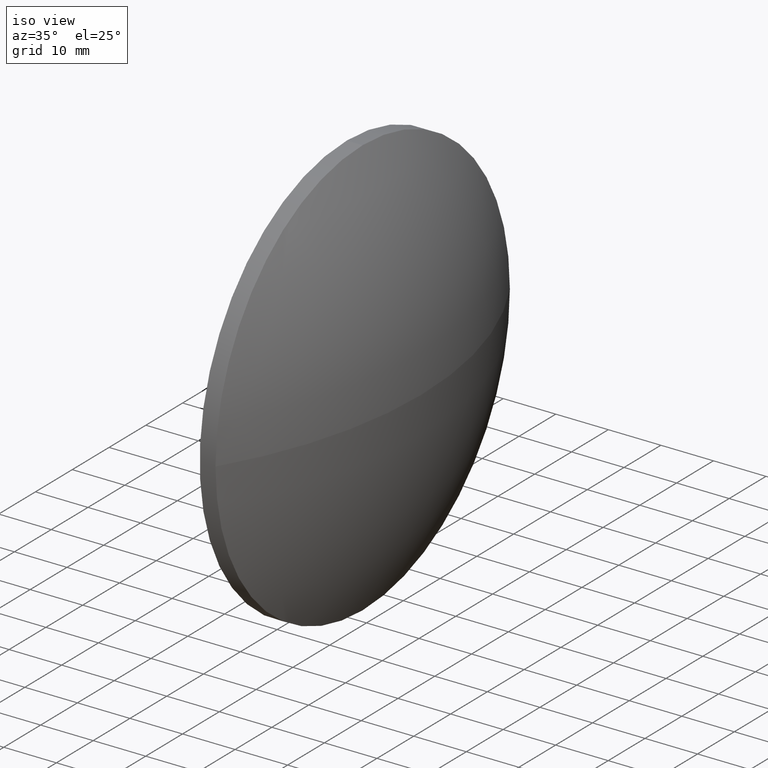
[diagram: clean part render]
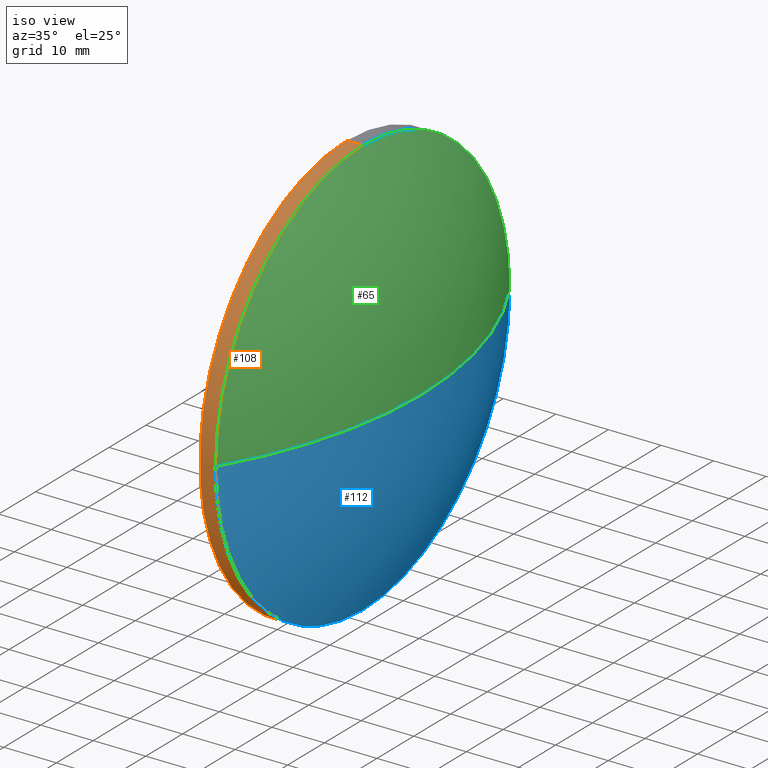
[diagram: same view with three faces highlighted in distinct colors, each labeled with its STEP entity id]
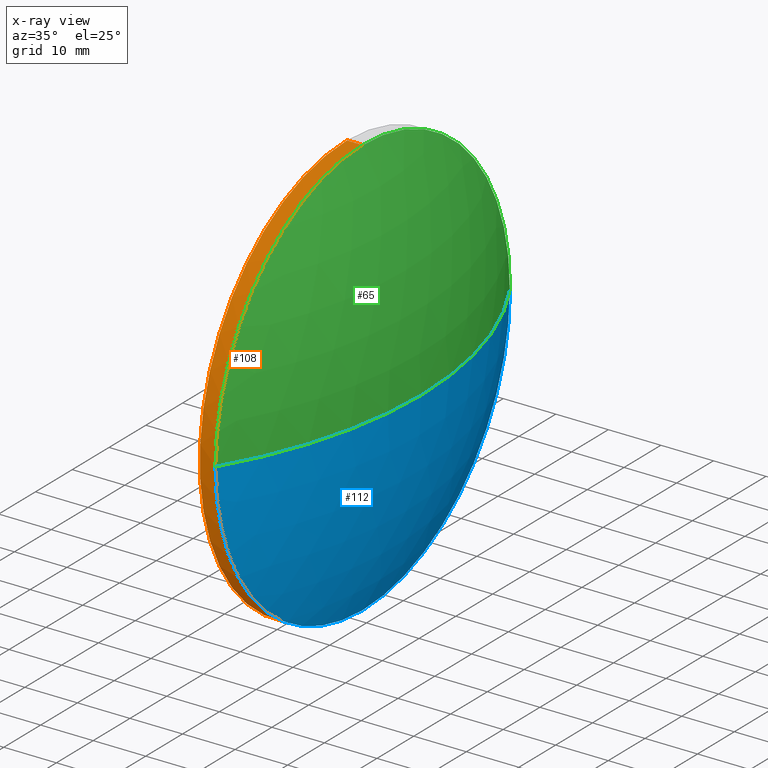
[diagram: x-ray of the same camera — body ghosted, the three highlighted faces saturated]
A machine part, iso view with three faces highlighted in distinct colors.
The next image is the same camera in x-ray (body ghosted, the three faces saturated) — at least one of them is partly hidden behind the body in this view.
Their STEP definitions:

[orange] entity #108 — the highlighted cylindrical surface (partial cylindrical patch) has radius 40 mm, axis along (-1, -0, -0).
#2 = DIRECTION ( 'NONE',  ( 0.0000000000000000000, 0.0000000000000000000, 1.000000000000000000 ) ) ;
#5 = CARTESIAN_POINT ( 'NONE',  ( 228.9490942240209100, 130.4671098528244200, 0.0000000000000000000 ) ) ;
#18 = ORIENTED_EDGE ( 'NONE', *, *, #169, .T. ) ;
#19 = LINE ( 'NONE', #180, #172 ) ;
#23 = CYLINDRICAL_SURFACE ( 'NONE', #39, 40.00000000000000700 ) ;
#25 = CARTESIAN_POINT ( 'NONE',  ( 228.9490942240209100, 130.4671098528244200, -40.00000000000000700 ) ) ;
#27 = CARTESIAN_POINT ( 'NONE',  ( 228.9490942240209100, 90.46710985282442200, -4.898587196589411400E-015 ) ) ;
#37 = AXIS2_PLACEMENT_3D ( 'NONE', #155, #162, #45 ) ;
#39 = AXIS2_PLACEMENT_3D ( 'NONE', #78, #175, #94 ) ;
#41 = EDGE_CURVE ( 'NONE', #84, #105, #168, .T. ) ;
#45 = DIRECTION ( 'NONE',  ( 0.0000000000000000000, 0.0000000000000000000, 1.000000000000000000 ) ) ;
#51 = CIRCLE ( 'NONE', #37, 40.00000000000000700 ) ;
#52 = CARTESIAN_POINT ( 'NONE',  ( 225.9490942240209100, 130.4671098528244200, -40.00000000000000700 ) ) ;
#53 = AXIS2_PLACEMENT_3D ( 'NONE', #176, #76, #2 ) ;
#60 = FACE_OUTER_BOUND ( 'NONE', #91, .T. ) ;
#61 = ORIENTED_EDGE ( 'NONE', *, *, #41, .F. ) ;
#63 = DIRECTION ( 'NONE',  ( -1.000000000000000000, -0.0000000000000000000, -0.0000000000000000000 ) ) ;
#64 = DIRECTION ( 'NONE',  ( -1.000000000000000000, -0.0000000000000000000, -0.0000000000000000000 ) ) ;
#72 = VERTEX_POINT ( 'NONE', #27 ) ;
#76 = DIRECTION ( 'NONE',  ( -1.000000000000000000, -0.0000000000000000000, -0.0000000000000000000 ) ) ;
#78 = CARTESIAN_POINT ( 'NONE',  ( 217.9945825323866300, 130.4671098528244200, 0.0000000000000000000 ) ) ;
#82 = DIRECTION ( 'NONE',  ( -1.000000000000000000, -0.0000000000000000000, -0.0000000000000000000 ) ) ;
#84 = VERTEX_POINT ( 'NONE', #52 ) ;
#90 = VERTEX_POINT ( 'NONE', #25 ) ;
#91 = EDGE_LOOP ( 'NONE', ( #132, #18, #177, #129, #61 ) ) ;
#94 = DIRECTION ( 'NONE',  ( 0.0000000000000000000, 0.0000000000000000000, 1.000000000000000000 ) ) ;
#97 = CARTESIAN_POINT ( 'NONE',  ( 228.9490942240209100, 130.4671098528244200, 40.00000000000000700 ) ) ;
#102 = CIRCLE ( 'NONE', #126, 40.00000000000000700 ) ;
#104 = LINE ( 'NONE', #182, #113 ) ;
#105 = VERTEX_POINT ( 'NONE', #106 ) ;
#106 = CARTESIAN_POINT ( 'NONE',  ( 225.9490942240209100, 130.4671098528244200, 40.00000000000000700 ) ) ;
#108 = ADVANCED_FACE ( 'NONE', ( #60 ), #23, .T. ) ;
#113 = VECTOR ( 'NONE', #63, 1000.000000000000000 ) ;
#125 = VERTEX_POINT ( 'NONE', #97 ) ;
#126 = AXIS2_PLACEMENT_3D ( 'NONE', #5, #82, #167 ) ;
#128 = EDGE_CURVE ( 'NONE', #125, #105, #104, .T. ) ;
#129 = ORIENTED_EDGE ( 'NONE', *, *, #128, .T. ) ;
#131 = EDGE_CURVE ( 'NONE', #72, #125, #51, .T. ) ;
#132 = ORIENTED_EDGE ( 'NONE', *, *, #158, .F. ) ;
#155 = CARTESIAN_POINT ( 'NONE',  ( 228.9490942240209100, 130.4671098528244200, 0.0000000000000000000 ) ) ;
#158 = EDGE_CURVE ( 'NONE', #90, #84, #19, .T. ) ;
#162 = DIRECTION ( 'NONE',  ( -1.000000000000000000, -0.0000000000000000000, -0.0000000000000000000 ) ) ;
#167 = DIRECTION ( 'NONE',  ( 0.0000000000000000000, 0.0000000000000000000, 1.000000000000000000 ) ) ;
#168 = CIRCLE ( 'NONE', #53, 40.00000000000000700 ) ;
#169 = EDGE_CURVE ( 'NONE', #90, #72, #102, .T. ) ;
#172 = VECTOR ( 'NONE', #64, 1000.000000000000000 ) ;
#175 = DIRECTION ( 'NONE',  ( -1.000000000000000000, -0.0000000000000000000, -0.0000000000000000000 ) ) ;
#176 = CARTESIAN_POINT ( 'NONE',  ( 225.9490942240209100, 130.4671098528244200, 0.0000000000000000000 ) ) ;
#177 = ORIENTED_EDGE ( 'NONE', *, *, #131, .T. ) ;
#180 = CARTESIAN_POINT ( 'NONE',  ( 217.9945825323866300, 130.4671098528244200, -40.00000000000000700 ) ) ;
#182 = CARTESIAN_POINT ( 'NONE',  ( 217.9945825323866300, 130.4671098528244200, 40.00000000000000700 ) ) ;

[blue] entity #112 — the highlighted spherical surface has radius 77.5024 mm.
#5 = CARTESIAN_POINT ( 'NONE',  ( 228.9490942240209100, 130.4671098528244200, 0.0000000000000000000 ) ) ;
#10 = ORIENTED_EDGE ( 'NONE', *, *, #186, .F. ) ;
#13 = AXIS2_PLACEMENT_3D ( 'NONE', #48, #47, #123 ) ;
#14 = DIRECTION ( 'NONE',  ( 0.0000000000000000000, 1.224646799147353200E-016, -1.000000000000000000 ) ) ;
#25 = CARTESIAN_POINT ( 'NONE',  ( 228.9490942240209100, 130.4671098528244200, -40.00000000000000700 ) ) ;
#26 = AXIS2_PLACEMENT_3D ( 'NONE', #138, #83, #124 ) ;
#27 = CARTESIAN_POINT ( 'NONE',  ( 228.9490942240209100, 90.46710985282442200, -4.898587196589411400E-015 ) ) ;
#44 = DIRECTION ( 'NONE',  ( 0.0000000000000000000, 0.0000000000000000000, 1.000000000000000000 ) ) ;
#47 = DIRECTION ( 'NONE',  ( -0.0000000000000000000, 0.0000000000000000000, 1.000000000000000000 ) ) ;
#48 = CARTESIAN_POINT ( 'NONE',  ( 162.5666481808554500, 130.4671098528244200, 0.0000000000000000000 ) ) ;
#50 = ORIENTED_EDGE ( 'NONE', *, *, #140, .F. ) ;
#54 = ORIENTED_EDGE ( 'NONE', *, *, #169, .F. ) ;
#58 = EDGE_CURVE ( 'NONE', #174, #72, #71, .T. ) ;
#71 = CIRCLE ( 'NONE', #86, 77.50244604316544900 ) ;
#72 = VERTEX_POINT ( 'NONE', #27 ) ;
#73 = CIRCLE ( 'NONE', #13, 77.50244604316544900 ) ;
#77 = CARTESIAN_POINT ( 'NONE',  ( 162.5666481808554500, 130.4671098528244200, 0.0000000000000000000 ) ) ;
#82 = DIRECTION ( 'NONE',  ( -1.000000000000000000, -0.0000000000000000000, -0.0000000000000000000 ) ) ;
#83 = DIRECTION ( 'NONE',  ( -0.0000000000000000000, 0.0000000000000000000, -1.000000000000000000 ) ) ;
#85 = ORIENTED_EDGE ( 'NONE', *, *, #58, .T. ) ;
#86 = AXIS2_PLACEMENT_3D ( 'NONE', #77, #14, #145 ) ;
#90 = VERTEX_POINT ( 'NONE', #25 ) ;
#98 = DIRECTION ( 'NONE',  ( -1.000000000000000000, -0.0000000000000000000, -0.0000000000000000000 ) ) ;
#99 = CARTESIAN_POINT ( 'NONE',  ( 240.0690942240208900, 130.4671098528244200, 0.0000000000000000000 ) ) ;
#102 = CIRCLE ( 'NONE', #126, 40.00000000000000700 ) ;
#111 = CARTESIAN_POINT ( 'NONE',  ( 228.9490942240209100, 130.4671098528244200, 0.0000000000000000000 ) ) ;
#112 = ADVANCED_FACE ( 'NONE', ( #139 ), #179, .T. ) ;
#120 = EDGE_LOOP ( 'NONE', ( #50, #85, #54, #10 ) ) ;
#123 = DIRECTION ( 'NONE',  ( 1.000000000000000000, 0.0000000000000000000, 0.0000000000000000000 ) ) ;
#124 = DIRECTION ( 'NONE',  ( 0.0000000000000000000, 1.000000000000000000, 0.0000000000000000000 ) ) ;
#126 = AXIS2_PLACEMENT_3D ( 'NONE', #5, #82, #167 ) ;
#134 = CIRCLE ( 'NONE', #151, 40.00000000000000700 ) ;
#138 = CARTESIAN_POINT ( 'NONE',  ( 162.5666481808554500, 130.4671098528244200, 0.0000000000000000000 ) ) ;
#139 = FACE_OUTER_BOUND ( 'NONE', #120, .T. ) ;
#140 = EDGE_CURVE ( 'NONE', #174, #157, #73, .T. ) ;
#145 = DIRECTION ( 'NONE',  ( 0.0000000000000000000, 1.000000000000000000, 1.224646799147353200E-016 ) ) ;
#151 = AXIS2_PLACEMENT_3D ( 'NONE', #111, #98, #44 ) ;
#157 = VERTEX_POINT ( 'NONE', #183 ) ;
#167 = DIRECTION ( 'NONE',  ( 0.0000000000000000000, 0.0000000000000000000, 1.000000000000000000 ) ) ;
#169 = EDGE_CURVE ( 'NONE', #90, #72, #102, .T. ) ;
#174 = VERTEX_POINT ( 'NONE', #99 ) ;
#179 = SPHERICAL_SURFACE ( 'NONE', #26, 77.50244604316544900 ) ;
#183 = CARTESIAN_POINT ( 'NONE',  ( 228.9490942240209100, 170.4671098528244200, 0.0000000000000000000 ) ) ;
#186 = EDGE_CURVE ( 'NONE', #157, #90, #134, .T. ) ;

[green] entity #65 — the highlighted spherical surface has radius 77.5024 mm.
#12 = CARTESIAN_POINT ( 'NONE',  ( 162.5666481808554500, 130.4671098528244200, 0.0000000000000000000 ) ) ;
#13 = AXIS2_PLACEMENT_3D ( 'NONE', #48, #47, #123 ) ;
#14 = DIRECTION ( 'NONE',  ( 0.0000000000000000000, 1.224646799147353200E-016, -1.000000000000000000 ) ) ;
#24 = DIRECTION ( 'NONE',  ( 0.0000000000000000000, 0.0000000000000000000, 1.000000000000000000 ) ) ;
#27 = CARTESIAN_POINT ( 'NONE',  ( 228.9490942240209100, 90.46710985282442200, -4.898587196589411400E-015 ) ) ;
#30 = AXIS2_PLACEMENT_3D ( 'NONE', #12, #75, #119 ) ;
#33 = SPHERICAL_SURFACE ( 'NONE', #30, 77.50244604316544900 ) ;
#34 = ORIENTED_EDGE ( 'NONE', *, *, #58, .F. ) ;
#35 = EDGE_CURVE ( 'NONE', #125, #157, #36, .T. ) ;
#36 = CIRCLE ( 'NONE', #148, 40.00000000000000700 ) ;
#37 = AXIS2_PLACEMENT_3D ( 'NONE', #155, #162, #45 ) ;
#40 = CARTESIAN_POINT ( 'NONE',  ( 228.9490942240209100, 130.4671098528244200, 0.0000000000000000000 ) ) ;
#45 = DIRECTION ( 'NONE',  ( 0.0000000000000000000, 0.0000000000000000000, 1.000000000000000000 ) ) ;
#47 = DIRECTION ( 'NONE',  ( -0.0000000000000000000, 0.0000000000000000000, 1.000000000000000000 ) ) ;
#48 = CARTESIAN_POINT ( 'NONE',  ( 162.5666481808554500, 130.4671098528244200, 0.0000000000000000000 ) ) ;
#51 = CIRCLE ( 'NONE', #37, 40.00000000000000700 ) ;
#58 = EDGE_CURVE ( 'NONE', #174, #72, #71, .T. ) ;
#65 = ADVANCED_FACE ( 'NONE', ( #109 ), #33, .T. ) ;
#70 = ORIENTED_EDGE ( 'NONE', *, *, #35, .F. ) ;
#71 = CIRCLE ( 'NONE', #86, 77.50244604316544900 ) ;
#72 = VERTEX_POINT ( 'NONE', #27 ) ;
#73 = CIRCLE ( 'NONE', #13, 77.50244604316544900 ) ;
#75 = DIRECTION ( 'NONE',  ( -0.0000000000000000000, 0.0000000000000000000, -1.000000000000000000 ) ) ;
#77 = CARTESIAN_POINT ( 'NONE',  ( 162.5666481808554500, 130.4671098528244200, 0.0000000000000000000 ) ) ;
#86 = AXIS2_PLACEMENT_3D ( 'NONE', #77, #14, #145 ) ;
#92 = DIRECTION ( 'NONE',  ( -1.000000000000000000, -0.0000000000000000000, -0.0000000000000000000 ) ) ;
#97 = CARTESIAN_POINT ( 'NONE',  ( 228.9490942240209100, 130.4671098528244200, 40.00000000000000700 ) ) ;
#99 = CARTESIAN_POINT ( 'NONE',  ( 240.0690942240208900, 130.4671098528244200, 0.0000000000000000000 ) ) ;
#109 = FACE_OUTER_BOUND ( 'NONE', #141, .T. ) ;
#118 = ORIENTED_EDGE ( 'NONE', *, *, #140, .T. ) ;
#119 = DIRECTION ( 'NONE',  ( 0.0000000000000000000, 1.000000000000000000, 0.0000000000000000000 ) ) ;
#123 = DIRECTION ( 'NONE',  ( 1.000000000000000000, 0.0000000000000000000, 0.0000000000000000000 ) ) ;
#125 = VERTEX_POINT ( 'NONE', #97 ) ;
#131 = EDGE_CURVE ( 'NONE', #72, #125, #51, .T. ) ;
#140 = EDGE_CURVE ( 'NONE', #174, #157, #73, .T. ) ;
#141 = EDGE_LOOP ( 'NONE', ( #34, #118, #70, #156 ) ) ;
#145 = DIRECTION ( 'NONE',  ( 0.0000000000000000000, 1.000000000000000000, 1.224646799147353200E-016 ) ) ;
#148 = AXIS2_PLACEMENT_3D ( 'NONE', #40, #92, #24 ) ;
#155 = CARTESIAN_POINT ( 'NONE',  ( 228.9490942240209100, 130.4671098528244200, 0.0000000000000000000 ) ) ;
#156 = ORIENTED_EDGE ( 'NONE', *, *, #131, .F. ) ;
#157 = VERTEX_POINT ( 'NONE', #183 ) ;
#162 = DIRECTION ( 'NONE',  ( -1.000000000000000000, -0.0000000000000000000, -0.0000000000000000000 ) ) ;
#174 = VERTEX_POINT ( 'NONE', #99 ) ;
#183 = CARTESIAN_POINT ( 'NONE',  ( 228.9490942240209100, 170.4671098528244200, 0.0000000000000000000 ) ) ;